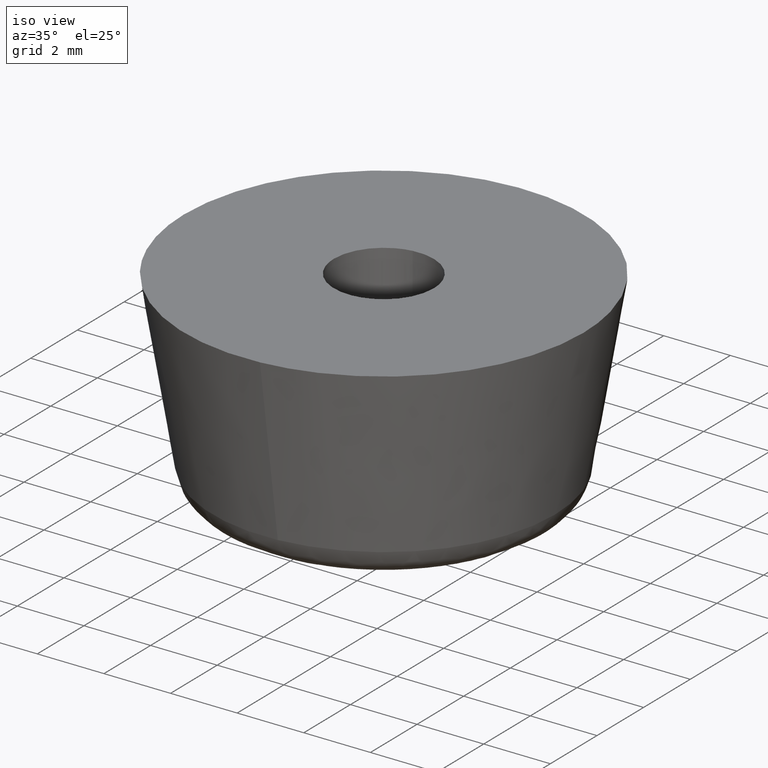
[diagram: clean part render]
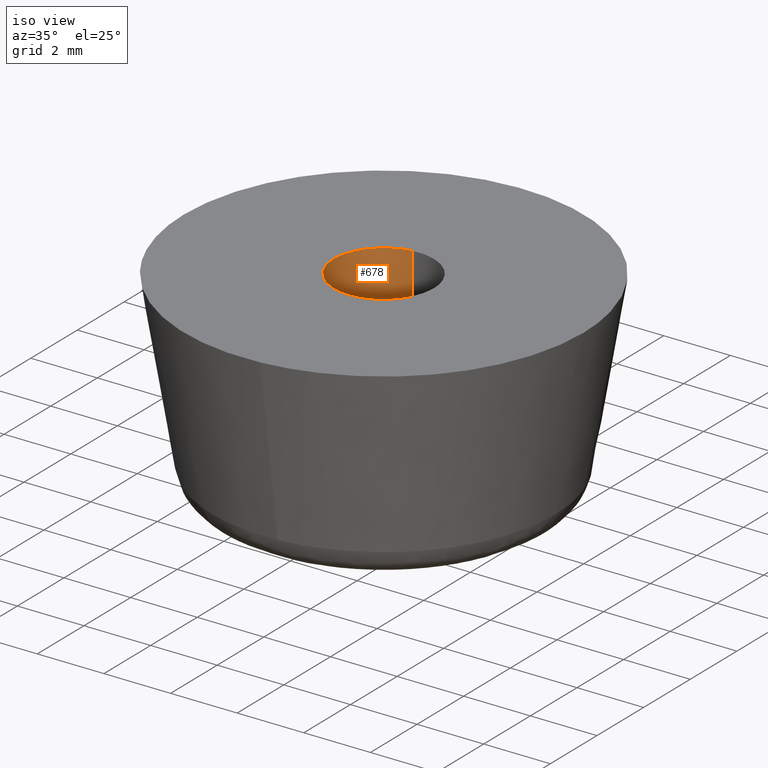
[diagram: same view with one face highlighted and labeled with its STEP entity id]
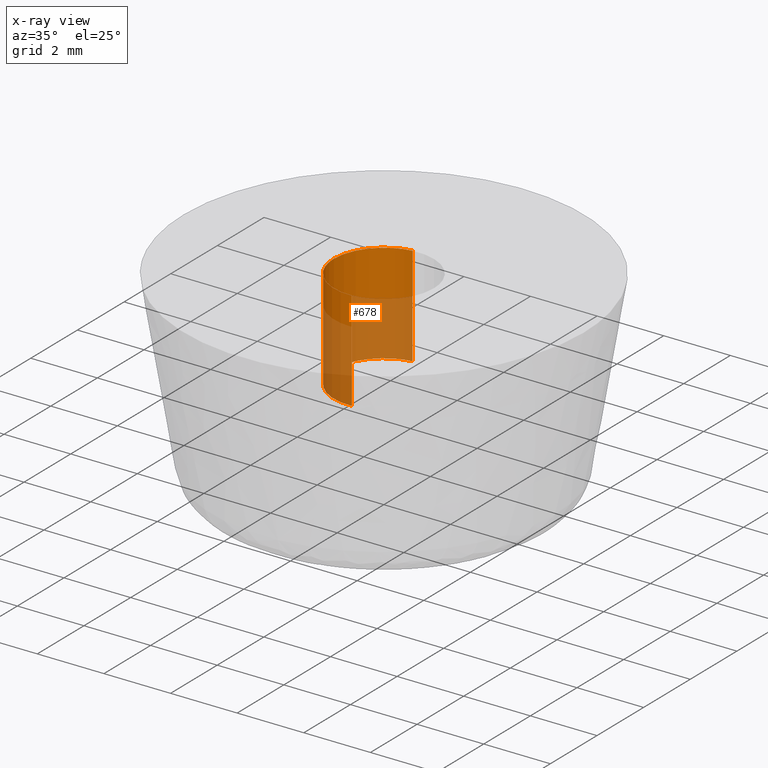
[diagram: x-ray of the same camera — body ghosted, the highlighted face saturated]
A machine part, iso view. The second image highlights one B-rep face of the part: STEP entity #678.
The next image is the same camera in x-ray: the body ghosted, the highlighted face saturated — about 56% of this face is hidden behind the body in this view.
In plain terms, the highlighted face is a freeform B-spline surface patch.
Its self-contained STEP definition (entity closure, byte-faithful):
#515=CARTESIAN_POINT('',(-0.177051351995047,1.489514289544322,6.0));
#516=VERTEX_POINT('',#515);
#534=CARTESIAN_POINT('',(-0.177051351995047,1.489514289544322,3.0));
#535=VERTEX_POINT('',#534);
#536=CARTESIAN_POINT('',(-0.177051351995047,1.489514289544322,6.0));
#537=CARTESIAN_POINT('',(-0.177051351995047,1.489514289544322,3.0));
#538=QUASI_UNIFORM_CURVE('',1,(#536,#537),.UNSPECIFIED.,.F.,.U.);
#539=EDGE_CURVE('',#516,#535,#538,.T.);
#558=CARTESIAN_POINT('',(0.091572809316450,-1.497202197631934,3.0));
#559=VERTEX_POINT('',#558);
#573=CARTESIAN_POINT('',(0.091572809316450,-1.497202197631934,6.0));
#574=VERTEX_POINT('',#573);
#575=CARTESIAN_POINT('',(0.091572809316450,-1.497202197631934,6.0));
#576=CARTESIAN_POINT('',(0.091572809316450,-1.497202197631934,3.0));
#577=QUASI_UNIFORM_CURVE('',1,(#575,#576),.UNSPECIFIED.,.F.,.U.);
#578=EDGE_CURVE('',#574,#559,#577,.T.);
#596=CARTESIAN_POINT('',(0.091572809302285,-1.497202197632800,6.075000000000001));
#597=CARTESIAN_POINT('',(-1.405629388330515,-1.588775006935085,6.075000000000003));
#598=CARTESIAN_POINT('',(-1.497202197632800,-0.091572809302285,6.075000000000001));
#599=CARTESIAN_POINT('',(-1.583679295098791,1.322315236259252,6.075000000000001));
#600=CARTESIAN_POINT('',(-0.177051351985138,1.489514289545500,6.075000000000003));
#601=CARTESIAN_POINT('',(0.091572809302285,-1.497202197632800,2.923124999999999));
#602=CARTESIAN_POINT('',(-1.405629388330515,-1.588775006935085,2.923124999999999));
#603=CARTESIAN_POINT('',(-1.497202197632800,-0.091572809302285,2.923124999999999));
#604=CARTESIAN_POINT('',(-1.583679295098791,1.322315236259252,2.923125000000000));
#605=CARTESIAN_POINT('',(-0.177051351985138,1.489514289545500,2.923124999999999));
#613=(BOUNDED_SURFACE()B_SPLINE_SURFACE(2,1,((#596,#601),(#597,#602),(#598,#603),(#599,#604),(#600,#605)),.UNSPECIFIED.,.F.,.F.,.U.)B_SPLINE_SURFACE_WITH_KNOTS((3,2,3),(2,2),(0.0,1.570796326794897,3.078760800517997),(0.0,3.151875000000003),.UNSPECIFIED.)GEOMETRIC_REPRESENTATION_ITEM()RATIONAL_B_SPLINE_SURFACE(((1.0,1.0),(0.707106781186548,0.707106781186548),(1.0,1.0),(0.718822509939086,0.718822509939086),(0.977505800795127,0.977505800795127)))REPRESENTATION_ITEM('')SURFACE());
#614=CARTESIAN_POINT('',(-1.500000000000000,0.0,6.0));
#615=VERTEX_POINT('',#614);
#616=CARTESIAN_POINT('',(-1.500000000000000,0.0,6.0));
#617=CARTESIAN_POINT('',(-1.500000000000000,1.332261788909200,5.999999999999999));
#618=CARTESIAN_POINT('',(-0.177051351995047,1.489514289544321,6.000000000000001));
#626=(BOUNDED_CURVE()B_SPLINE_CURVE(2,(#616,#617,#618),.UNSPECIFIED.,.F.,.U.)B_SPLINE_CURVE_WITH_KNOTS((3,3),(0.0,0.229562473513396),.UNSPECIFIED.)CURVE()GEOMETRIC_REPRESENTATION_ITEM()RATIONAL_B_SPLINE_CURVE((1.0,0.731050832855535,0.956026754183478))REPRESENTATION_ITEM(''));
#627=EDGE_CURVE('',#615,#516,#626,.T.);
#628=ORIENTED_EDGE('',*,*,#627,.F.);
#629=CARTESIAN_POINT('',(0.091572809316450,-1.497202197631934,6.000000000000001));
#630=CARTESIAN_POINT('',(0.045829144962088,-1.500000000000000,6.000000000000001));
#631=CARTESIAN_POINT('',(0.0,-1.500000000000000,6.0));
#632=CARTESIAN_POINT('',(-1.500000000000000,-1.500000000000000,6.0));
#633=CARTESIAN_POINT('',(-1.500000000000000,0.0,6.0));
#641=(BOUNDED_CURVE()B_SPLINE_CURVE(2,(#629,#630,#631,#632,#633),.UNSPECIFIED.,.F.,.U.)B_SPLINE_CURVE_WITH_KNOTS((3,2,3),(0.739332962238703,0.750000000000000,1.0),.UNSPECIFIED.)CURVE()GEOMETRIC_REPRESENTATION_ITEM()RATIONAL_B_SPLINE_CURVE((0.976072041666204,0.987502787899557,1.0,0.707106781186548,1.0))REPRESENTATION_ITEM(''));
#642=EDGE_CURVE('',#574,#615,#641,.T.);
#643=ORIENTED_EDGE('',*,*,#642,.F.);
#644=ORIENTED_EDGE('',*,*,#578,.T.);
#645=CARTESIAN_POINT('',(-1.500000000000000,0.0,3.0));
#646=VERTEX_POINT('',#645);
#647=CARTESIAN_POINT('',(0.091572809316450,-1.497202197631934,3.000000000000000));
#648=CARTESIAN_POINT('',(0.045829144962088,-1.500000000000000,3.0));
#649=CARTESIAN_POINT('',(0.0,-1.500000000000000,3.0));
#650=CARTESIAN_POINT('',(-1.500000000000000,-1.500000000000000,3.0));
#651=CARTESIAN_POINT('',(-1.500000000000000,0.0,3.0));
#659=(BOUNDED_CURVE()B_SPLINE_CURVE(2,(#647,#648,#649,#650,#651),.UNSPECIFIED.,.F.,.U.)B_SPLINE_CURVE_WITH_KNOTS((3,2,3),(0.739332962238703,0.750000000000000,1.0),.UNSPECIFIED.)CURVE()GEOMETRIC_REPRESENTATION_ITEM()RATIONAL_B_SPLINE_CURVE((0.976072041666204,0.987502787899557,1.0,0.707106781186548,1.0))REPRESENTATION_ITEM(''));
#660=EDGE_CURVE('',#559,#646,#659,.T.);
#661=ORIENTED_EDGE('',*,*,#660,.T.);
#662=CARTESIAN_POINT('',(-1.500000000000000,0.0,3.0));
#663=CARTESIAN_POINT('',(-1.500000000000000,1.332261788909200,3.000000000000000));
#664=CARTESIAN_POINT('',(-0.177051351995047,1.489514289544321,3.000000000000001));
#672=(BOUNDED_CURVE()B_SPLINE_CURVE(2,(#662,#663,#664),.UNSPECIFIED.,.F.,.U.)B_SPLINE_CURVE_WITH_KNOTS((3,3),(0.0,0.229562473513396),.UNSPECIFIED.)CURVE()GEOMETRIC_REPRESENTATION_ITEM()RATIONAL_B_SPLINE_CURVE((1.0,0.731050832855535,0.956026754183478))REPRESENTATION_ITEM(''));
#673=EDGE_CURVE('',#646,#535,#672,.T.);
#674=ORIENTED_EDGE('',*,*,#673,.T.);
#675=ORIENTED_EDGE('',*,*,#539,.F.);
#676=EDGE_LOOP('',(#628,#643,#644,#661,#674,#675));
#677=FACE_OUTER_BOUND('',#676,.T.);
#678=ADVANCED_FACE('',(#677),#613,.F.);